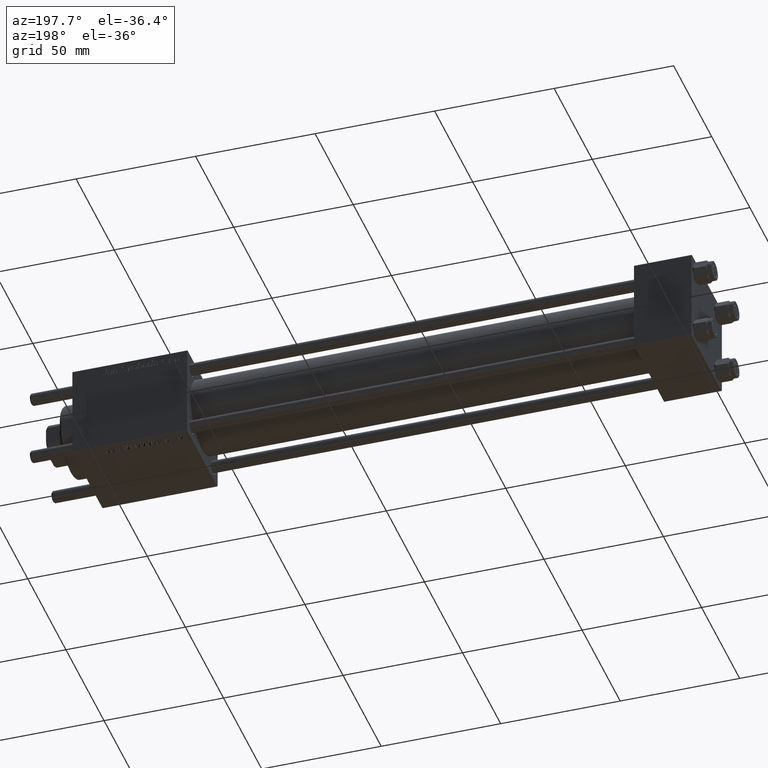
[diagram: clean part render]
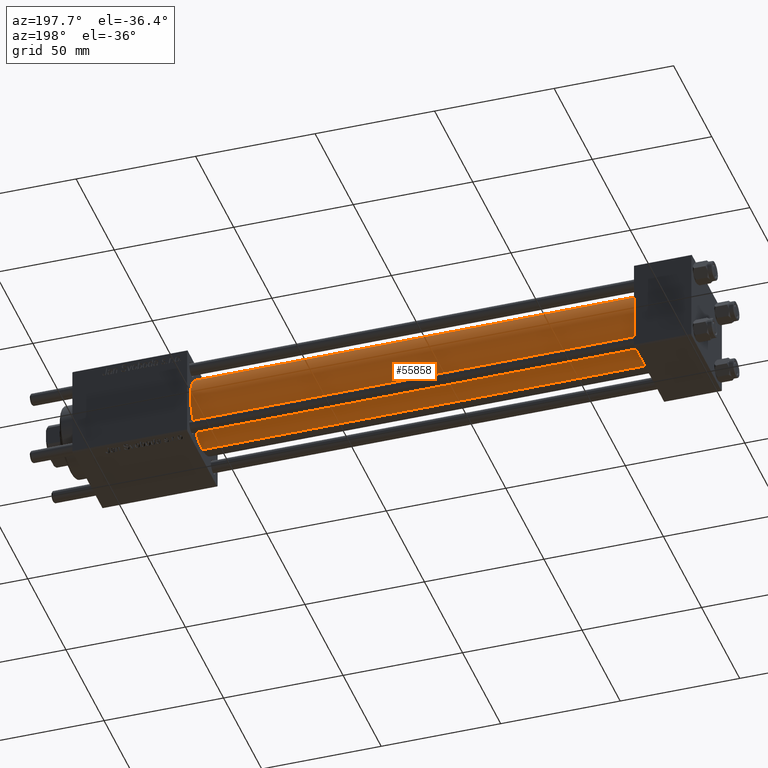
[diagram: same view with one face highlighted and labeled with its STEP entity id]
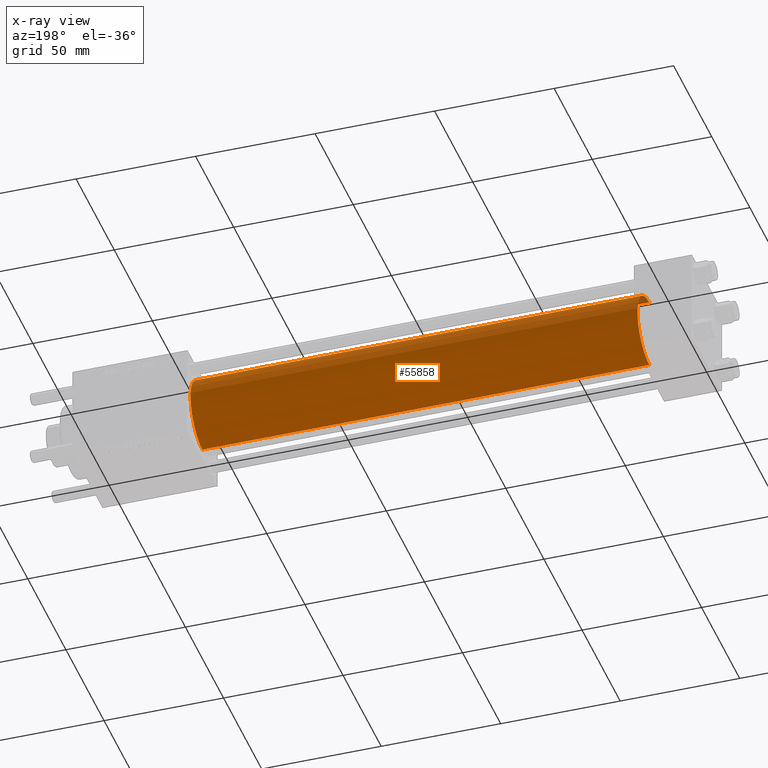
[diagram: x-ray of the same camera — body ghosted, the highlighted face saturated]
A machine part, auxiliary view. The second image highlights one B-rep face of the part: STEP entity #55858.
The next image is the same camera in x-ray: the body ghosted, the highlighted face saturated — about 0% of this face is hidden behind the body in this view.
In plain terms, the highlighted cylindrical surface (partial cylindrical patch) has radius 15.5 mm, axis along (-1, -0, -0).
Its self-contained STEP definition (entity closure, byte-faithful):
#477 = CYLINDRICAL_SURFACE ( 'NONE', #37434, 15.50000000000000000 ) ;
#2215 = DIRECTION ( 'NONE',  ( -1.000000000000000000, -0.000000000000000000, -0.000000000000000000 ) ) ;
#3280 = ORIENTED_EDGE ( 'NONE', *, *, #56664, .T. ) ;
#3574 = DIRECTION ( 'NONE',  ( 0.000000000000000000, 0.000000000000000000, -1.000000000000000000 ) ) ;
#3846 = CARTESIAN_POINT ( 'NONE',  ( 211.0000000000000000, -2.602085213965210642E-15, 0.000000000000000000 ) ) ;
#4594 = VERTEX_POINT ( 'NONE', #35946 ) ;
#4777 = CARTESIAN_POINT ( 'NONE',  ( 211.0000000000000000, -2.602085213965210642E-15, 0.000000000000000000 ) ) ;
#5072 = ORIENTED_EDGE ( 'NONE', *, *, #7063, .F. ) ;
#6782 = DIRECTION ( 'NONE',  ( 0.000000000000000000, 0.000000000000000000, 1.000000000000000000 ) ) ;
#7063 = EDGE_CURVE ( 'NONE', #8490, #4594, #47073, .T. ) ;
#7071 = DIRECTION ( 'NONE',  ( 1.000000000000000000, 0.000000000000000000, 0.000000000000000000 ) ) ;
#7759 = VECTOR ( 'NONE', #47790, 1000.000000000000000 ) ;
#8245 = CARTESIAN_POINT ( 'NONE',  ( 211.0000000000000000, -7.038826752868131828E-16, -15.50000000000000000 ) ) ;
#8460 = EDGE_CURVE ( 'NONE', #4594, #47821, #26001, .T. ) ;
#8490 = VERTEX_POINT ( 'NONE', #8245 ) ;
#10542 = CARTESIAN_POINT ( 'NONE',  ( 211.0000000000000000, -7.038826752868131828E-16, -15.50000000000000000 ) ) ;
#10615 = EDGE_CURVE ( 'NONE', #8490, #36677, #40936, .T. ) ;
#10784 = CARTESIAN_POINT ( 'NONE',  ( 23.99999999999999289, -7.038826752868131828E-16, -15.50000000000000000 ) ) ;
#11461 = ORIENTED_EDGE ( 'NONE', *, *, #8460, .F. ) ;
#16511 = CARTESIAN_POINT ( 'NONE',  ( 23.99999999999999289, -2.602085213965210642E-15, 0.000000000000000000 ) ) ;
#21705 = DIRECTION ( 'NONE',  ( -1.000000000000000000, -0.000000000000000000, -0.000000000000000000 ) ) ;
#23504 = EDGE_LOOP ( 'NONE', ( #5072, #37410, #3280, #11461 ) ) ;
#23734 = CIRCLE ( 'NONE', #54869, 15.50000000000000000 ) ;
#26001 = LINE ( 'NONE', #30596, #7759 ) ;
#26847 = FACE_OUTER_BOUND ( 'NONE', #23504, .T. ) ;
#26927 = AXIS2_PLACEMENT_3D ( 'NONE', #3846, #42850, #3574 ) ;
#30596 = CARTESIAN_POINT ( 'NONE',  ( 211.0000000000000000, -2.602085213965210642E-15, 15.50000000000000000 ) ) ;
#35946 = CARTESIAN_POINT ( 'NONE',  ( 211.0000000000000000, -2.602085213965210642E-15, 15.50000000000000000 ) ) ;
#36677 = VERTEX_POINT ( 'NONE', #10784 ) ;
#37410 = ORIENTED_EDGE ( 'NONE', *, *, #10615, .T. ) ;
#37434 = AXIS2_PLACEMENT_3D ( 'NONE', #4777, #21705, #39199 ) ;
#39199 = DIRECTION ( 'NONE',  ( 0.000000000000000000, 0.000000000000000000, 1.000000000000000000 ) ) ;
#40936 = LINE ( 'NONE', #10542, #42572 ) ;
#42572 = VECTOR ( 'NONE', #2215, 1000.000000000000000 ) ;
#42850 = DIRECTION ( 'NONE',  ( 1.000000000000000000, 0.000000000000000000, 0.000000000000000000 ) ) ;
#47073 = CIRCLE ( 'NONE', #26927, 15.50000000000000000 ) ;
#47790 = DIRECTION ( 'NONE',  ( -1.000000000000000000, -0.000000000000000000, -0.000000000000000000 ) ) ;
#47821 = VERTEX_POINT ( 'NONE', #52788 ) ;
#52788 = CARTESIAN_POINT ( 'NONE',  ( 23.99999999999999289, -2.602085213965210642E-15, 15.50000000000000000 ) ) ;
#54869 = AXIS2_PLACEMENT_3D ( 'NONE', #16511, #7071, #6782 ) ;
#55858 = ADVANCED_FACE ( 'NONE', ( #26847 ), #477, .T. ) ;
#56664 = EDGE_CURVE ( 'NONE', #36677, #47821, #23734, .T. ) ;